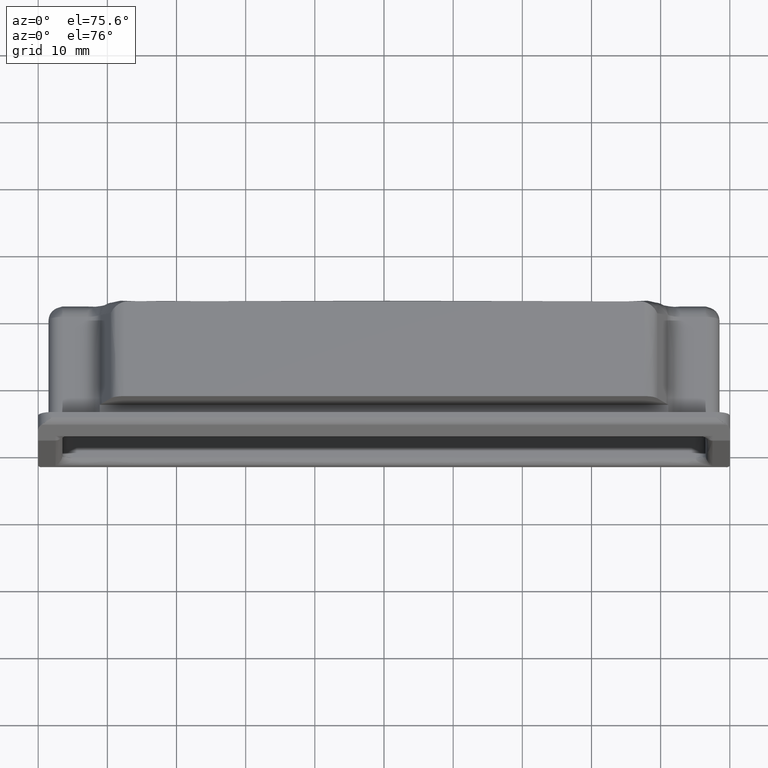
[diagram: clean part render]
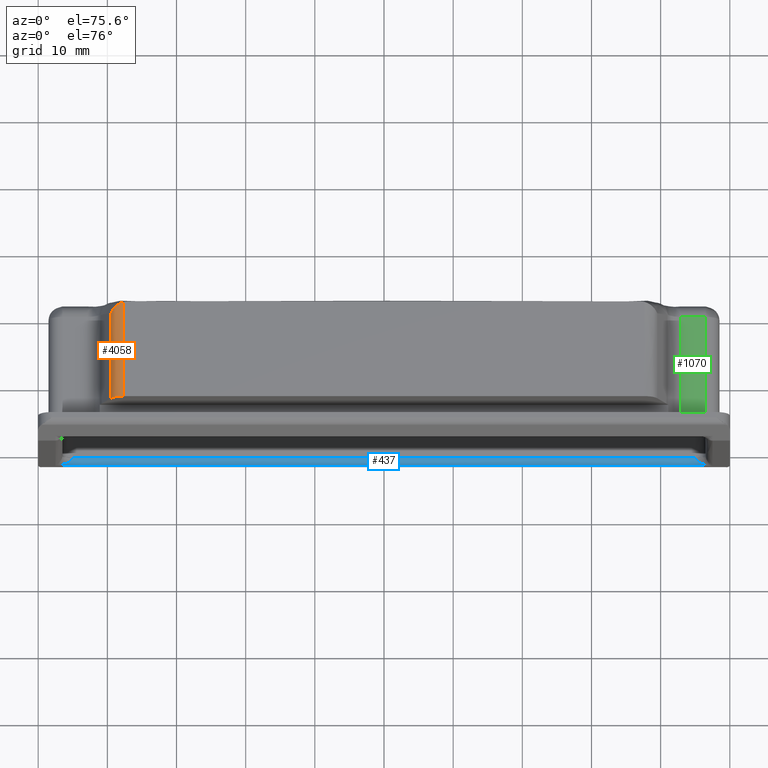
[diagram: same view with three faces highlighted in distinct colors, each labeled with its STEP entity id]
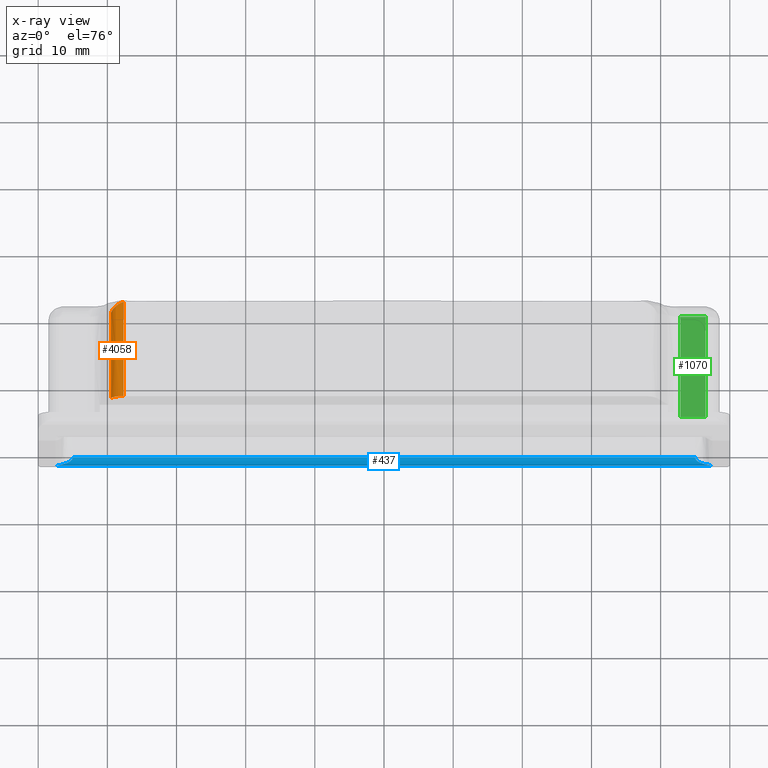
[diagram: x-ray of the same camera — body ghosted, the three highlighted faces saturated]
A machine part, auxiliary view with three faces highlighted in distinct colors.
The next image is the same camera in x-ray (body ghosted, the three faces saturated) — at least one of them is partly hidden behind the body in this view.
Their STEP definitions:

[orange] entity #4058 — the highlighted face is a freeform B-spline surface patch.
#1227=CARTESIAN_POINT('',(-39.512820127025847,14.291616465790620,14.519230695137519));
#1228=VERTEX_POINT('',#1227);
#1251=CARTESIAN_POINT('',(-39.512820127025847,1.600000000000045,14.519230695137519));
#1252=VERTEX_POINT('',#1251);
#1258=CARTESIAN_POINT('',(-39.512820127025847,1.600000000000045,14.519230695137519));
#1259=CARTESIAN_POINT('',(-39.512820127025847,14.291616465790620,14.519230695137519));
#1260=QUASI_UNIFORM_CURVE('',1,(#1258,#1259),.UNSPECIFIED.,.F.,.U.);
#1261=EDGE_CURVE('',#1252,#1228,#1260,.T.);
#3964=CARTESIAN_POINT('',(-37.666666249999899,15.662654278391750,15.750000000000000));
#3965=VERTEX_POINT('',#3964);
#3988=CARTESIAN_POINT('',(-39.512820127025897,14.291616465790620,14.519230695137541));
#3989=CARTESIAN_POINT('',(-39.504174585724357,14.308879619435290,14.539979996606860));
#3990=CARTESIAN_POINT('',(-39.494995532827929,14.326477967971931,14.561005101515100));
#3991=CARTESIAN_POINT('',(-39.476080498207239,14.361304359613680,14.602371585351261));
#3992=CARTESIAN_POINT('',(-39.466271376058032,14.378682801886660,14.622891166403070));
#3993=CARTESIAN_POINT('',(-39.435788280365898,14.430714302547241,14.683958047317320));
#3994=CARTESIAN_POINT('',(-39.414059800278942,14.465263607271950,14.724014095881831));
#3995=CARTESIAN_POINT('',(-39.344604359649502,14.568497315801430,14.842187902477530));
#3996=CARTESIAN_POINT('',(-39.292379921212081,14.637024215457480,14.918588419942470));
#3997=CARTESIAN_POINT('',(-39.177664049249309,14.770941057712699,15.063556046255080));
#3998=CARTESIAN_POINT('',(-39.115115062562303,14.836492211255100,15.132325198415449));
#3999=CARTESIAN_POINT('',(-39.013141765232611,14.932659953870770,15.229598058959830));
#4000=CARTESIAN_POINT('',(-38.977787684775713,14.964354941010731,15.261038685744341));
#4001=CARTESIAN_POINT('',(-38.904227844014798,15.026999978130020,15.321851973807931));
#4002=CARTESIAN_POINT('',(-38.865931965521163,15.058019066657200,15.351288394434780));
#4003=CARTESIAN_POINT('',(-38.747122795720017,15.149427625886670,15.435842450265000));
#4004=CARTESIAN_POINT('',(-38.663396876981963,15.207677788105221,15.486778394205180));
#4005=CARTESIAN_POINT('',(-38.530618612180049,15.290846223212920,15.554453961513170));
#4006=CARTESIAN_POINT('',(-38.485156303649127,15.317865259811271,15.575552004326820));
#4007=CARTESIAN_POINT('',(-38.391689896464982,15.370428841513981,15.614646561815629));
#4008=CARTESIAN_POINT('',(-38.343581462785806,15.396025949311090,15.632677962965261));
#4009=CARTESIAN_POINT('',(-38.195832583172923,15.470114537917560,15.681513671186510));
#4010=CARTESIAN_POINT('',(-38.094403621374298,15.515134997811019,15.706593229428130));
#4011=CARTESIAN_POINT('',(-37.885373725958459,15.596039829783420,15.740824794971701));
#4012=CARTESIAN_POINT('',(-37.777781502703462,15.631936789737280,15.750000000000000));
#4013=CARTESIAN_POINT('',(-37.666666249999899,15.662654278391800,15.750000000000000));
#4014=B_SPLINE_CURVE_WITH_KNOTS('',3,(#3988,#3989,#3990,#3991,#3992,#3993,#3994,#3995,#3996,#3997,#3998,#3999,#4000,#4001,#4002,#4003,#4004,#4005,#4006,#4007,#4008,#4009,#4010,#4011,#4012,#4013),.UNSPECIFIED.,.F.,.U.,(4,2,2,2,2,2,2,2,2,2,2,2,4),(0.0,0.031250000000002,0.062500000000003,0.125000000000002,0.250000000000001,0.375000000000001,0.437500000000000,0.500000000000000,0.625000000000000,0.687499999999997,0.749999999999994,0.874999999999997,1.0),.UNSPECIFIED.);
#4015=EDGE_CURVE('',#1228,#3965,#4014,.T.);
#4020=CARTESIAN_POINT('',(-39.540010628496702,16.014220635351538,14.450414762518930));
#4021=CARTESIAN_POINT('',(-39.540010628496702,1.239644484116255,14.450414762518930));
#4022=CARTESIAN_POINT('',(-39.024860058296639,16.014220635351545,15.828247550184660));
#4023=CARTESIAN_POINT('',(-39.024860058296639,1.239644484116255,15.828247550184660));
#4024=CARTESIAN_POINT('',(-37.556121548297163,16.014220635351545,15.746942630354077));
#4025=CARTESIAN_POINT('',(-37.556121548297163,1.239644484116256,15.746942630354077));
#4033=(BOUNDED_SURFACE()B_SPLINE_SURFACE(1,2,((#4020,#4022,#4024),(#4021,#4023,#4025)),.UNSPECIFIED.,.F.,.F.,.U.)B_SPLINE_SURFACE_WITH_KNOTS((2,2),(3,3),(0.0,14.774576151235291),(0.0,2.625169649257077),.UNSPECIFIED.)GEOMETRIC_REPRESENTATION_ITEM()RATIONAL_B_SPLINE_SURFACE(((1.0,0.802508504384243,0.992402995738769),(1.0,0.802508504384243,0.992402995738769)))REPRESENTATION_ITEM('')SURFACE());
#4034=CARTESIAN_POINT('',(-37.666666249999899,1.600000000000080,15.750000000000000));
#4035=VERTEX_POINT('',#4034);
#4036=CARTESIAN_POINT('',(-37.666666249999899,1.600000000000045,15.750000000000000));
#4037=CARTESIAN_POINT('',(-38.999999641304328,1.600000000000046,15.749999999999998));
#4038=CARTESIAN_POINT('',(-39.512820127025911,1.600000000000045,14.519230695137550));
#4046=(BOUNDED_CURVE()B_SPLINE_CURVE(2,(#4036,#4037,#4038),.UNSPECIFIED.,.F.,.U.)CURVE()GEOMETRIC_REPRESENTATION_ITEM()QUASI_UNIFORM_CURVE()RATIONAL_B_SPLINE_CURVE((1.0,0.832050283206723,1.0))REPRESENTATION_ITEM(''));
#4047=EDGE_CURVE('',#4035,#1252,#4046,.T.);
#4048=ORIENTED_EDGE('',*,*,#4047,.F.);
#4049=CARTESIAN_POINT('',(-37.666666249999899,15.662654278391750,15.750000000000000));
#4050=CARTESIAN_POINT('',(-37.666666249999899,1.600000000000080,15.750000000000000));
#4051=QUASI_UNIFORM_CURVE('',1,(#4049,#4050),.UNSPECIFIED.,.F.,.U.);
#4052=EDGE_CURVE('',#3965,#4035,#4051,.T.);
#4053=ORIENTED_EDGE('',*,*,#4052,.F.);
#4054=ORIENTED_EDGE('',*,*,#4015,.F.);
#4055=ORIENTED_EDGE('',*,*,#1261,.F.);
#4056=EDGE_LOOP('',(#4048,#4053,#4054,#4055));
#4057=FACE_OUTER_BOUND('',#4056,.T.);
#4058=ADVANCED_FACE('',(#4057),#4033,.T.);

[blue] entity #437 — the highlighted face is a freeform B-spline surface patch.
#280=CARTESIAN_POINT('',(47.500000000000000,-2.097502976634620,-10.299937624788500));
#281=VERTEX_POINT('',#280);
#341=CARTESIAN_POINT('',(49.875000000000000,-1.070173116572466,-9.250408420773493));
#342=CARTESIAN_POINT('',(-49.934375000000003,-1.070173116572466,-9.250408420773493));
#343=CARTESIAN_POINT('',(49.875000000000000,-2.232870210042583,-9.217167843355533));
#344=CARTESIAN_POINT('',(-49.934375000000017,-2.232870210042583,-9.217167843355533));
#345=CARTESIAN_POINT('',(49.875000000000007,-2.091318205263036,-10.371694801504985));
#346=CARTESIAN_POINT('',(-49.934374999999996,-2.091318205263036,-10.371694801504985));
#354=(BOUNDED_SURFACE()B_SPLINE_SURFACE(1,2,((#341,#343,#345),(#342,#344,#346)),.UNSPECIFIED.,.F.,.F.,.U.)B_SPLINE_SURFACE_WITH_KNOTS((2,2),(3,3),(0.0,99.809375000000003),(0.0,0.995731675623357),.UNSPECIFIED.)GEOMETRIC_REPRESENTATION_ITEM()RATIONAL_B_SPLINE_SURFACE(((1.0,0.650944317770775,0.997020234245471),(1.0,0.650944317770775,0.997020234245471)))REPRESENTATION_ITEM('')SURFACE());
#355=CARTESIAN_POINT('',(-47.500000000000000,-2.097502976634620,-10.299937624788500));
#356=VERTEX_POINT('',#355);
#357=CARTESIAN_POINT('',(47.500000000000000,-2.097502976634620,-10.299937624788500));
#358=CARTESIAN_POINT('',(-47.500000000000000,-2.097502976634620,-10.299937624788500));
#359=QUASI_UNIFORM_CURVE('',1,(#357,#358),.UNSPECIFIED.,.F.,.U.);
#360=EDGE_CURVE('',#281,#356,#359,.T.);
#361=ORIENTED_EDGE('',*,*,#360,.F.);
#362=CARTESIAN_POINT('',(45.0,-1.148688262937502,-9.251247661514380));
#363=VERTEX_POINT('',#362);
#364=CARTESIAN_POINT('',(47.500000000000000,-2.097502976634619,-10.299937624788500));
#365=CARTESIAN_POINT('',(45.000000000000007,-2.147440601423118,-9.301185286302882));
#366=CARTESIAN_POINT('',(45.0,-1.148688262937502,-9.251247661514386));
#374=(BOUNDED_CURVE()B_SPLINE_CURVE(2,(#364,#365,#366),.UNSPECIFIED.,.F.,.U.)CURVE()GEOMETRIC_REPRESENTATION_ITEM()QUASI_UNIFORM_CURVE()RATIONAL_B_SPLINE_CURVE((1.0,0.707106781186548,1.0))REPRESENTATION_ITEM(''));
#375=EDGE_CURVE('',#281,#363,#374,.T.);
#376=ORIENTED_EDGE('',*,*,#375,.T.);
#377=CARTESIAN_POINT('',(45.0,-1.098750638149004,-9.250000000000000));
#378=VERTEX_POINT('',#377);
#379=CARTESIAN_POINT('',(45.0,-1.148688262937502,-9.251247661514386));
#380=CARTESIAN_POINT('',(45.0,-1.123735036579444,-9.250000000000002));
#381=CARTESIAN_POINT('',(45.0,-1.098750638149004,-9.250000000000002));
#389=(BOUNDED_CURVE()B_SPLINE_CURVE(2,(#379,#380,#381),.UNSPECIFIED.,.F.,.U.)CURVE()GEOMETRIC_REPRESENTATION_ITEM()QUASI_UNIFORM_CURVE()RATIONAL_B_SPLINE_CURVE((1.0,0.999688035960623,1.0))REPRESENTATION_ITEM(''));
#390=EDGE_CURVE('',#363,#378,#389,.T.);
#391=ORIENTED_EDGE('',*,*,#390,.T.);
#392=CARTESIAN_POINT('',(-45.0,-1.098750638149004,-9.250000000000000));
#393=VERTEX_POINT('',#392);
#394=CARTESIAN_POINT('',(-45.0,-1.098750638149004,-9.250000000000000));
#395=CARTESIAN_POINT('',(45.0,-1.098750638149004,-9.250000000000000));
#396=QUASI_UNIFORM_CURVE('',1,(#394,#395),.UNSPECIFIED.,.F.,.U.);
#397=EDGE_CURVE('',#393,#378,#396,.T.);
#398=ORIENTED_EDGE('',*,*,#397,.F.);
#399=CARTESIAN_POINT('',(-45.0,-1.148688262937502,-9.251247661514380));
#400=VERTEX_POINT('',#399);
#401=CARTESIAN_POINT('',(-45.0,-1.098750638149004,-9.250000000000002));
#402=CARTESIAN_POINT('',(-45.0,-1.123735036579444,-9.250000000000002));
#403=CARTESIAN_POINT('',(-45.0,-1.148688262937502,-9.251247661514386));
#411=(BOUNDED_CURVE()B_SPLINE_CURVE(2,(#401,#402,#403),.UNSPECIFIED.,.F.,.U.)CURVE()GEOMETRIC_REPRESENTATION_ITEM()QUASI_UNIFORM_CURVE()RATIONAL_B_SPLINE_CURVE((1.0,0.999688035960623,1.0))REPRESENTATION_ITEM(''));
#412=EDGE_CURVE('',#393,#400,#411,.T.);
#413=ORIENTED_EDGE('',*,*,#412,.T.);
#414=CARTESIAN_POINT('',(-45.0,-1.148688262937502,-9.251247661514380));
#415=CARTESIAN_POINT('',(-44.999890800871633,-1.196411657430415,-9.253590097397941));
#416=CARTESIAN_POINT('',(-45.014812431776271,-1.275172599674850,-9.263504253652803));
#417=CARTESIAN_POINT('',(-45.062040486378017,-1.373747626752497,-9.287347826917968));
#418=CARTESIAN_POINT('',(-45.137535924098600,-1.480784020897932,-9.322935546724166));
#419=CARTESIAN_POINT('',(-45.260148138729612,-1.594568062711012,-9.377730903421185));
#420=CARTESIAN_POINT('',(-45.473980363629707,-1.732978964109892,-9.470291188948044));
#421=CARTESIAN_POINT('',(-45.725937942070139,-1.843933234766828,-9.576747834920973));
#422=CARTESIAN_POINT('',(-46.050365330288997,-1.946704034790374,-9.711819443507222));
#423=CARTESIAN_POINT('',(-46.295797169929081,-2.000412021282628,-9.812800218467180));
#424=CARTESIAN_POINT('',(-46.470399637911662,-2.029704529196021,-9.884193078052997));
#425=CARTESIAN_POINT('',(-46.528804939692847,-2.038193618059061,-9.908008837706632));
#426=CARTESIAN_POINT('',(-46.587141200304480,-2.047210017349586,-9.931823311918917));
#427=CARTESIAN_POINT('',(-46.645739601914180,-2.054248346478704,-9.955643869995532));
#428=CARTESIAN_POINT('',(-46.718924576457262,-2.063348227400319,-9.985409423587621));
#429=CARTESIAN_POINT('',(-46.997736655378532,-2.092644853159631,-10.098538405738021));
#430=CARTESIAN_POINT('',(-47.263656027417397,-2.102183494764216,-10.205515963440620));
#431=CARTESIAN_POINT('',(-47.500000000000000,-2.097502976634620,-10.299937624788500));
#432=B_SPLINE_CURVE_WITH_KNOTS('',3,(#414,#415,#416,#417,#418,#419,#420,#421,#422,#423,#424,#425,#426,#427,#428,#429,#430,#431),.UNSPECIFIED.,.F.,.U.,(4,1,1,1,1,1,1,1,1,1,1,1,1,1,1,4),(0.000100652691113,0.143207800473907,0.238695836725554,0.334203346231166,0.548920856690133,0.763641494934326,1.145429636063983,1.431875871461551,1.861484821441845,1.956863127703390,2.004628957606732,2.052394787510074,2.147810553237564,2.195548279793821,2.290992985797107,3.054670037662441),.UNSPECIFIED.);
#433=EDGE_CURVE('',#400,#356,#432,.T.);
#434=ORIENTED_EDGE('',*,*,#433,.T.);
#435=EDGE_LOOP('',(#361,#376,#391,#398,#413,#434));
#436=FACE_OUTER_BOUND('',#435,.T.);
#437=ADVANCED_FACE('',(#436),#354,.T.);

[green] entity #1070 — the highlighted face is a freeform B-spline surface patch.
#1035=CARTESIAN_POINT('',(42.650183777919359,-0.747861398723760,9.749999999999888));
#1036=CARTESIAN_POINT('',(46.683150070428439,-0.747861398723760,9.749999999999888));
#1037=CARTESIAN_POINT('',(42.650183777919359,15.720062555920901,9.749999999999888));
#1038=CARTESIAN_POINT('',(46.683150070428439,15.720062555920901,9.749999999999888));
#1039=B_SPLINE_SURFACE_WITH_KNOTS('',1,1,((#1035,#1037),(#1036,#1038)),.UNSPECIFIED.,.F.,.F.,.U.,(2,2),(2,2),(0.0,4.032966292509080),(0.0,16.467923954644661),.UNSPECIFIED.);
#1040=CARTESIAN_POINT('',(46.500000000000000,0.0,9.749999999999888));
#1041=VERTEX_POINT('',#1040);
#1042=CARTESIAN_POINT('',(42.833333750000143,0.0,9.749999999999888));
#1043=VERTEX_POINT('',#1042);
#1044=CARTESIAN_POINT('',(46.500000000000000,0.0,9.749999999999888));
#1045=CARTESIAN_POINT('',(42.833333750000143,0.0,9.749999999999888));
#1046=QUASI_UNIFORM_CURVE('',1,(#1044,#1045),.UNSPECIFIED.,.F.,.U.);
#1047=EDGE_CURVE('',#1041,#1043,#1046,.T.);
#1048=ORIENTED_EDGE('',*,*,#1047,.F.);
#1049=CARTESIAN_POINT('',(46.500000000000000,14.972200755611420,9.749999999999888));
#1050=VERTEX_POINT('',#1049);
#1051=CARTESIAN_POINT('',(46.500000000000000,0.0,9.749999999999888));
#1052=CARTESIAN_POINT('',(46.500000000000000,14.972200755611420,9.749999999999888));
#1053=QUASI_UNIFORM_CURVE('',1,(#1051,#1052),.UNSPECIFIED.,.F.,.U.);
#1054=EDGE_CURVE('',#1041,#1050,#1053,.T.);
#1055=ORIENTED_EDGE('',*,*,#1054,.T.);
#1056=CARTESIAN_POINT('',(42.833333750000143,14.972200755611420,9.749999999999888));
#1057=VERTEX_POINT('',#1056);
#1058=CARTESIAN_POINT('',(46.500000000000000,14.972200755611420,9.749999999999888));
#1059=CARTESIAN_POINT('',(42.833333750000143,14.972200755611420,9.749999999999888));
#1060=QUASI_UNIFORM_CURVE('',1,(#1058,#1059),.UNSPECIFIED.,.F.,.U.);
#1061=EDGE_CURVE('',#1050,#1057,#1060,.T.);
#1062=ORIENTED_EDGE('',*,*,#1061,.T.);
#1063=CARTESIAN_POINT('',(42.833333750000143,14.972200755611420,9.749999999999888));
#1064=CARTESIAN_POINT('',(42.833333750000143,0.0,9.749999999999888));
#1065=QUASI_UNIFORM_CURVE('',1,(#1063,#1064),.UNSPECIFIED.,.F.,.U.);
#1066=EDGE_CURVE('',#1057,#1043,#1065,.T.);
#1067=ORIENTED_EDGE('',*,*,#1066,.T.);
#1068=EDGE_LOOP('',(#1048,#1055,#1062,#1067));
#1069=FACE_OUTER_BOUND('',#1068,.T.);
#1070=ADVANCED_FACE('',(#1069),#1039,.T.);